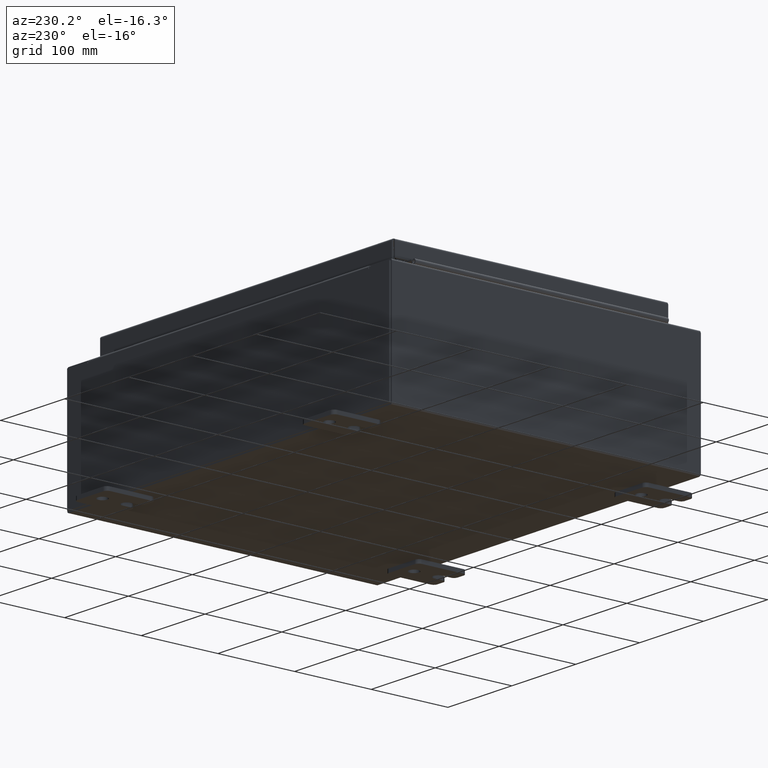
[diagram: clean part render]
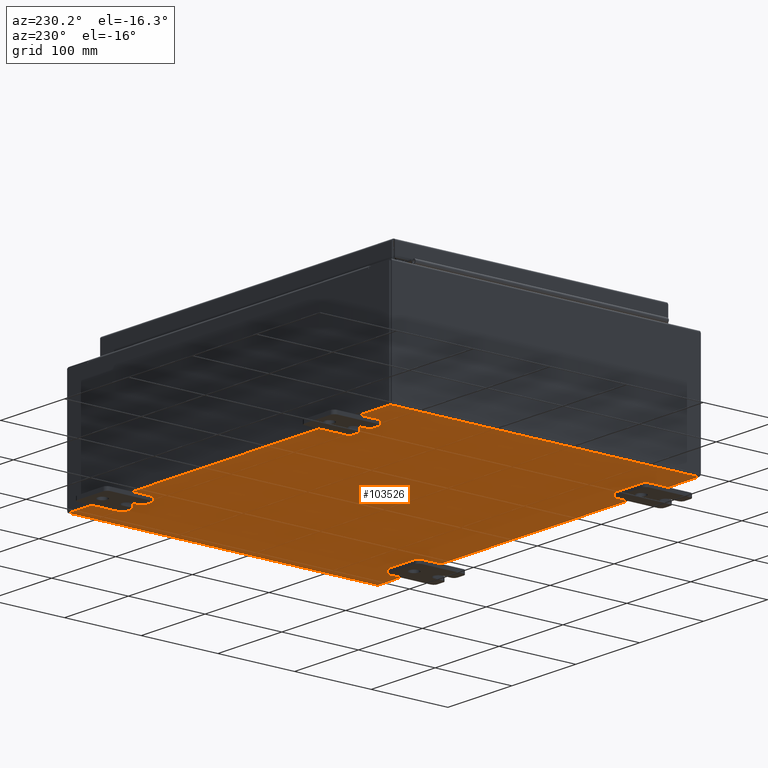
[diagram: same view with one face highlighted and labeled with its STEP entity id]
A machine part, auxiliary view. The second image highlights one B-rep face of the part: STEP entity #103526.
In plain terms, the highlighted planar face has unit normal (0, 0, -1).
Its self-contained STEP definition (entity closure, byte-faithful):
#3546 = LINE ( 'NONE', #6060, #91682 ) ;
#6060 = CARTESIAN_POINT ( 'NONE',  ( -10.00000000000000000, 7.925300000000000000, -0.07470000000000000300 ) ) ;
#11460 = CARTESIAN_POINT ( 'NONE',  ( 0.0000000000000000000, 0.0000000000000000000, -0.07470000000000000300 ) ) ;
#11725 = EDGE_LOOP ( 'NONE', ( #97199, #56567, #23054, #92688 ) ) ;
#12104 = LINE ( 'NONE', #69270, #95115 ) ;
#12574 = EDGE_CURVE ( 'NONE', #32058, #18436, #3546, .T. ) ;
#18436 = VERTEX_POINT ( 'NONE', #22839 ) ;
#19743 = PLANE ( 'NONE',  #101710 ) ;
#22585 = EDGE_CURVE ( 'NONE', #35959, #61413, #43558, .T. ) ;
#22839 = CARTESIAN_POINT ( 'NONE',  ( -9.912300000000000100, 7.925300000000000000, -0.07470000000000000300 ) ) ;
#23054 = ORIENTED_EDGE ( 'NONE', *, *, #12574, .F. ) ;
#27918 = DIRECTION ( 'NONE',  ( 1.000000000000000000, 0.0000000000000000000, 0.0000000000000000000 ) ) ;
#30984 = VECTOR ( 'NONE', #61850, 39.37007874015748100 ) ;
#32058 = VERTEX_POINT ( 'NONE', #98346 ) ;
#35866 = EDGE_CURVE ( 'NONE', #32058, #61413, #52912, .T. ) ;
#35959 = VERTEX_POINT ( 'NONE', #54656 ) ;
#36366 = DIRECTION ( 'NONE',  ( -1.000000000000000000, 0.0000000000000000000, -0.0000000000000000000 ) ) ;
#41956 = FACE_OUTER_BOUND ( 'NONE', #11725, .T. ) ;
#42679 = DIRECTION ( 'NONE',  ( -1.000000000000000000, -0.0000000000000000000, -0.0000000000000000000 ) ) ;
#43558 = LINE ( 'NONE', #94399, #65480 ) ;
#52912 = LINE ( 'NONE', #95223, #30984 ) ;
#54656 = CARTESIAN_POINT ( 'NONE',  ( -9.912300000000000100, -7.925300000000000000, -0.07469999999999994700 ) ) ;
#56567 = ORIENTED_EDGE ( 'NONE', *, *, #105742, .T. ) ;
#60845 = DIRECTION ( 'NONE',  ( -0.0000000000000000000, 1.000000000000000000, -0.0000000000000000000 ) ) ;
#61413 = VERTEX_POINT ( 'NONE', #63603 ) ;
#61850 = DIRECTION ( 'NONE',  ( -0.0000000000000000000, -1.000000000000000000, -0.0000000000000000000 ) ) ;
#63603 = CARTESIAN_POINT ( 'NONE',  ( 9.912300000000000100, -7.925300000000000000, -0.07470000000000000300 ) ) ;
#65480 = VECTOR ( 'NONE', #27918, 39.37007874015748100 ) ;
#69270 = CARTESIAN_POINT ( 'NONE',  ( -9.912300000000000100, -7.925300000000000000, -0.07469999999999994700 ) ) ;
#86096 = DIRECTION ( 'NONE',  ( 0.0000000000000000000, 0.0000000000000000000, -1.000000000000000000 ) ) ;
#91682 = VECTOR ( 'NONE', #42679, 39.37007874015748100 ) ;
#92688 = ORIENTED_EDGE ( 'NONE', *, *, #35866, .T. ) ;
#94399 = CARTESIAN_POINT ( 'NONE',  ( -10.00000000000000000, -7.925300000000000000, -0.07470000000000000300 ) ) ;
#95115 = VECTOR ( 'NONE', #60845, 39.37007874015748100 ) ;
#95223 = CARTESIAN_POINT ( 'NONE',  ( 9.912300000000000100, 7.925300000000000000, -0.07469999999999994700 ) ) ;
#97199 = ORIENTED_EDGE ( 'NONE', *, *, #22585, .F. ) ;
#98346 = CARTESIAN_POINT ( 'NONE',  ( 9.912300000000000100, 7.925300000000000000, -0.07469999999999994700 ) ) ;
#101710 = AXIS2_PLACEMENT_3D ( 'NONE', #11460, #86096, #36366 ) ;
#103526 = ADVANCED_FACE ( 'NONE', ( #41956 ), #19743, .T. ) ;
#105742 = EDGE_CURVE ( 'NONE', #35959, #18436, #12104, .T. ) ;